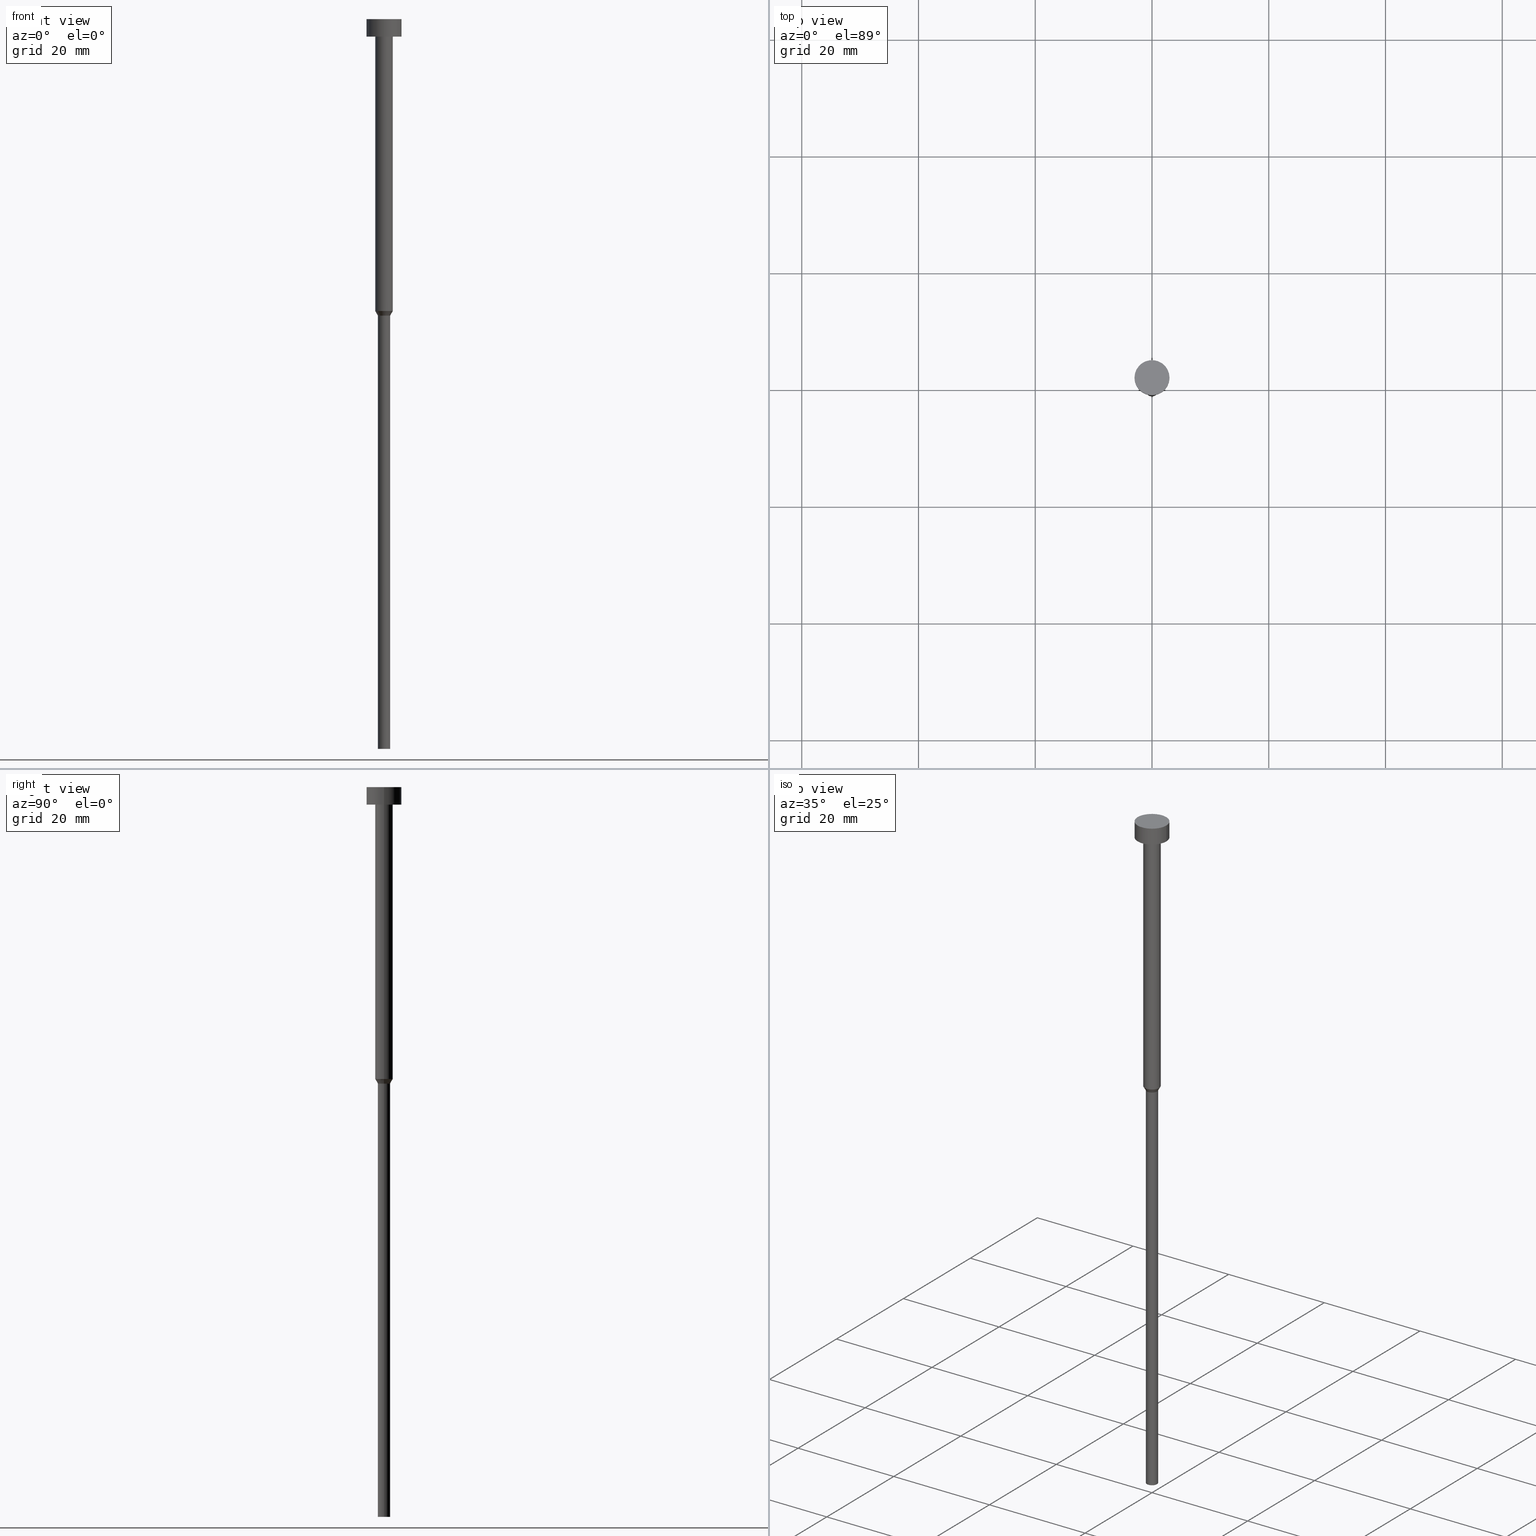
[diagram: canonical four-view strip — front | top / right | iso, engineering-drawing reading convention]
A machine part, canonical four-view strip (front | top / right | iso — engineering-drawing reading convention). The complete STEP part file that produces these views, byte-faithful:
ISO-10303-21;
HEADER;
FILE_DESCRIPTION (( 'STEP AP203' ),
    '1' );
FILE_NAME ('c009.STEP',
    '2023-02-13T10:03:35',
    ( '' ),
    ( '' ),
    'SwSTEP 2.0',
    'SolidWorks 2019',
    '' );
FILE_SCHEMA (( 'CONFIG_CONTROL_DESIGN' ));
ENDSEC;

DATA;
#1 = VECTOR ( 'NONE', #127, 1000.000000000000000 ) ;
#2 = DIRECTION ( 'NONE',  ( -0.000000000000000000, -0.000000000000000000, 1.000000000000000000 ) ) ;
#3 = ORIENTED_EDGE ( 'NONE', *, *, #298, .F. ) ;
#4 = LOCAL_TIME ( 11, 3, 35.00000000000000000, #239 ) ;
#5 = DIRECTION ( 'NONE',  ( -0.000000000000000000, -0.000000000000000000, 1.000000000000000000 ) ) ;
#6 = EDGE_CURVE ( 'NONE', #198, #338, #262, .T. ) ;
#7 = EDGE_LOOP ( 'NONE', ( #148, #206 ) ) ;
#8 = FACE_OUTER_BOUND ( 'NONE', #284, .T. ) ;
#9 = EDGE_LOOP ( 'NONE', ( #312, #151 ) ) ;
#10 = CYLINDRICAL_SURFACE ( 'NONE', #81, 3.000000000000000000 ) ;
#11 = VERTEX_POINT ( 'NONE', #27 ) ;
#12 = AXIS2_PLACEMENT_3D ( 'NONE', #67, #171, #224 ) ;
#13 = COORDINATED_UNIVERSAL_TIME_OFFSET ( 1, 0, .AHEAD. ) ;
#14 = ORIENTED_EDGE ( 'NONE', *, *, #314, .F. ) ;
#15 = LINE ( 'NONE', #126, #84 ) ;
#16 = MANIFOLD_SOLID_BREP ( 'Rotovat1', #290 ) ;
#17 = PERSON_AND_ORGANIZATION_ROLE ( 'design_owner' ) ;
#18 = PERSON_AND_ORGANIZATION ( #73, #350 ) ;
#19 = CC_DESIGN_APPROVAL ( #47, ( #160 ) ) ;
#20 = EDGE_CURVE ( 'NONE', #338, #198, #216, .T. ) ;
#21 = CARTESIAN_POINT ( 'NONE',  ( 0.000000000000000000, 0.000000000000000000, -125.0000000000000000 ) ) ;
#22 = DATE_TIME_ROLE ( 'creation_date' ) ;
#23 = APPROVAL_PERSON_ORGANIZATION ( #263, #66, #95 ) ;
#24 = APPROVAL_STATUS ( 'not_yet_approved' ) ;
#25 = DIRECTION ( 'NONE',  ( -0.000000000000000000, -0.000000000000000000, 1.000000000000000000 ) ) ;
#26 = ORIENTED_EDGE ( 'NONE', *, *, #201, .T. ) ;
#27 = CARTESIAN_POINT ( 'NONE',  ( 1.500000000000000000, 0.000000000000000000, -3.000000000000000888 ) ) ;
#28 = AXIS2_PLACEMENT_3D ( 'NONE', #322, #266, #130 ) ;
#29 = UNCERTAINTY_MEASURE_WITH_UNIT (LENGTH_MEASURE( 1.000000000000000082E-05 ), #342, 'distance_accuracy_value', 'NONE');
#30 = DATE_TIME_ROLE ( 'classification_date' ) ;
#31 = ADVANCED_FACE ( 'NONE', ( #182 ), #293, .T. ) ;
#32 = DIRECTION ( 'NONE',  ( -0.000000000000000000, -0.000000000000000000, 1.000000000000000000 ) ) ;
#33 = FACE_OUTER_BOUND ( 'NONE', #85, .T. ) ;
#34 = ORIENTED_EDGE ( 'NONE', *, *, #138, .F. ) ;
#35 = AXIS2_PLACEMENT_3D ( 'NONE', #135, #105, #156 ) ;
#36 = DIRECTION ( 'NONE',  ( 1.000000000000000000, 0.000000000000000000, 0.000000000000000000 ) ) ;
#37 = ORIENTED_EDGE ( 'NONE', *, *, #20, .F. ) ;
#38 = CIRCLE ( 'NONE', #234, 3.000000000000000000 ) ;
#39 = DIRECTION ( 'NONE',  ( 1.000000000000000000, 0.000000000000000000, 0.000000000000000000 ) ) ;
#40 = DIRECTION ( 'NONE',  ( -0.000000000000000000, -0.000000000000000000, 1.000000000000000000 ) ) ;
#41 = PERSON_AND_ORGANIZATION ( #73, #350 ) ;
#42 = ORIENTED_EDGE ( 'NONE', *, *, #120, .F. ) ;
#43 = PERSON_AND_ORGANIZATION_ROLE ( 'creator' ) ;
#44 = EDGE_CURVE ( 'NONE', #11, #243, #255, .T. ) ;
#45 = ORIENTED_EDGE ( 'NONE', *, *, #170, .T. ) ;
#46 = CALENDAR_DATE ( 2023, 13, 2 ) ;
#47 = APPROVAL ( #24, 'NEUR�EN�' ) ;
#48 = EDGE_CURVE ( 'NONE', #299, #352, #154, .T. ) ;
#49 = DIRECTION ( 'NONE',  ( -0.000000000000000000, -0.000000000000000000, 1.000000000000000000 ) ) ;
#50 = EDGE_CURVE ( 'NONE', #198, #243, #102, .T. ) ;
#51 = EDGE_CURVE ( 'NONE', #352, #338, #53, .T. ) ;
#52 = CARTESIAN_POINT ( 'NONE',  ( -3.000000000000000000, 3.673940397442059868E-16, -3.673940397442059868E-16 ) ) ;
#53 = LINE ( 'NONE', #347, #277 ) ;
#54 = LOCAL_TIME ( 11, 3, 35.00000000000000000, #107 ) ;
#55 = EDGE_CURVE ( 'NONE', #338, #11, #109, .T. ) ;
#56 = CYLINDRICAL_SURFACE ( 'NONE', #114, 1.050000000000000044 ) ;
#57 = ORIENTED_EDGE ( 'NONE', *, *, #353, .T. ) ;
#58 = EDGE_LOOP ( 'NONE', ( #96, #253 ) ) ;
#59 = ORIENTED_EDGE ( 'NONE', *, *, #335, .T. ) ;
#60 = ADVANCED_FACE ( 'NONE', ( #208 ), #161, .T. ) ;
#61 = CARTESIAN_POINT ( 'NONE',  ( 1.500000000000000000, 0.000000000000000000, -50.00000000000000000 ) ) ;
#62 = ORIENTED_EDGE ( 'NONE', *, *, #197, .F. ) ;
#63 = PLANE ( 'NONE',  #178 ) ;
#64 = CARTESIAN_POINT ( 'NONE',  ( 0.000000000000000000, 0.000000000000000000, -125.0000000000000000 ) ) ;
#65 = EDGE_LOOP ( 'NONE', ( #341, #300 ) ) ;
#66 = APPROVAL ( #131, 'NEUR�EN�' ) ;
#67 = CARTESIAN_POINT ( 'NONE',  ( 0.000000000000000000, 0.000000000000000000, -3.000000000000000888 ) ) ;
#68 = CARTESIAN_POINT ( 'NONE',  ( -1.500000000000000000, 1.836970198721029934E-16, -50.00000000000000000 ) ) ;
#69 = EDGE_LOOP ( 'NONE', ( #62, #91, #220, #97 ) ) ;
#70 = DIRECTION ( 'NONE',  ( -0.000000000000000000, -0.000000000000000000, 1.000000000000000000 ) ) ;
#71 = ORIENTED_EDGE ( 'NONE', *, *, #50, .F. ) ;
#72 = APPLICATION_PROTOCOL_DEFINITION ( 'international standard', 'config_control_design', 1994, #212 ) ;
#73 = PERSON ( 'NEUR�EN�', 'NEUR�EN�', 'NEUR�EN�', ('NEUR�EN�'), ('NEUR�EN�'), ('NEUR�EN�') ) ;
#74 = CIRCLE ( 'NONE', #313, 1.050000000000000044 ) ;
#75 = CC_DESIGN_PERSON_AND_ORGANIZATION_ASSIGNMENT ( #344, #99, ( #316 ) ) ;
#76 = CC_DESIGN_PERSON_AND_ORGANIZATION_ASSIGNMENT ( #41, #149, ( #316 ) ) ;
#77 = APPROVAL_ROLE ( '' ) ;
#78 = EDGE_LOOP ( 'NONE', ( #331, #225, #203, #179 ) ) ;
#79 = CARTESIAN_POINT ( 'NONE',  ( -1.500000000000000000, 1.836970198721029934E-16, 0.000000000000000000 ) ) ;
#80 = CYLINDRICAL_SURFACE ( 'NONE', #104, 1.500000000000000000 ) ;
#81 = AXIS2_PLACEMENT_3D ( 'NONE', #87, #2, #305 ) ;
#82 = CARTESIAN_POINT ( 'NONE',  ( 0.000000000000000000, 0.000000000000000000, -50.00000000000000000 ) ) ;
#83 = DIRECTION ( 'NONE',  ( -0.000000000000000000, -0.000000000000000000, 1.000000000000000000 ) ) ;
#84 = VECTOR ( 'NONE', #233, 1000.000000000000000 ) ;
#85 = EDGE_LOOP ( 'NONE', ( #59, #57, #14, #270 ) ) ;
#86 = DIRECTION ( 'NONE',  ( 1.000000000000000000, 0.000000000000000000, 0.000000000000000000 ) ) ;
#87 = CARTESIAN_POINT ( 'NONE',  ( 0.000000000000000000, 0.000000000000000000, 0.000000000000000000 ) ) ;
#88 = CIRCLE ( 'NONE', #326, 3.000000000000000000 ) ;
#89 = ORIENTED_EDGE ( 'NONE', *, *, #51, .F. ) ;
#90 = FACE_OUTER_BOUND ( 'NONE', #258, .T. ) ;
#91 = ORIENTED_EDGE ( 'NONE', *, *, #48, .T. ) ;
#92 = CARTESIAN_POINT ( 'NONE',  ( -3.000000000000000000, 3.673940397442059868E-16, -3.000000000000000888 ) ) ;
#93 = DIRECTION ( 'NONE',  ( -0.000000000000000000, -0.000000000000000000, 1.000000000000000000 ) ) ;
#94 = CC_DESIGN_PERSON_AND_ORGANIZATION_ASSIGNMENT ( #134, #268, ( #160 ) ) ;
#95 = APPROVAL_ROLE ( '' ) ;
#96 = ORIENTED_EDGE ( 'NONE', *, *, #335, .F. ) ;
#97 = ORIENTED_EDGE ( 'NONE', *, *, #6, .F. ) ;
#98 = APPROVAL_PERSON_ORGANIZATION ( #351, #47, #103 ) ;
#99 = PERSON_AND_ORGANIZATION_ROLE ( 'creator' ) ;
#100 = ORIENTED_EDGE ( 'NONE', *, *, #184, .F. ) ;
#101 = PERSON_AND_ORGANIZATION ( #73, #350 ) ;
#102 = LINE ( 'NONE', #79, #159 ) ;
#103 = APPROVAL_ROLE ( '' ) ;
#104 = AXIS2_PLACEMENT_3D ( 'NONE', #129, #70, #204 ) ;
#105 = DIRECTION ( 'NONE',  ( -0.000000000000000000, -0.000000000000000000, 1.000000000000000000 ) ) ;
#106 = AXIS2_PLACEMENT_3D ( 'NONE', #297, #238, #165 ) ;
#107 = COORDINATED_UNIVERSAL_TIME_OFFSET ( 1, 0, .AHEAD. ) ;
#108 = CC_DESIGN_PERSON_AND_ORGANIZATION_ASSIGNMENT ( #18, #17, ( #177 ) ) ;
#109 = LINE ( 'NONE', #136, #1 ) ;
#110 = DIRECTION ( 'NONE',  ( 1.000000000000000000, 0.000000000000000000, 0.000000000000000000 ) ) ;
#111 = LINE ( 'NONE', #272, #128 ) ;
#112 = CYLINDRICAL_SURFACE ( 'NONE', #271, 3.000000000000000000 ) ;
#113 = APPLICATION_CONTEXT ( 'configuration controlled 3d designs of mechanical parts and assemblies' ) ;
#114 = AXIS2_PLACEMENT_3D ( 'NONE', #162, #245, #210 ) ;
#115 = CIRCLE ( 'NONE', #12, 3.000000000000000000 ) ;
#116 = FACE_OUTER_BOUND ( 'NONE', #337, .T. ) ;
#117 = CYLINDRICAL_SURFACE ( 'NONE', #188, 1.500000000000000000 ) ;
#118 = VERTEX_POINT ( 'NONE', #52 ) ;
#119 = DIRECTION ( 'NONE',  ( 1.000000000000000000, 0.000000000000000000, 0.000000000000000000 ) ) ;
#120 = EDGE_CURVE ( 'NONE', #243, #11, #186, .T. ) ;
#121 = AXIS2_PLACEMENT_3D ( 'NONE', #140, #249, #145 ) ;
#122 = DATE_AND_TIME ( #320, #202 ) ;
#123 = ORIENTED_EDGE ( 'NONE', *, *, #184, .T. ) ;
#124 = DIRECTION ( 'NONE',  ( 0.000000000000000000, 0.000000000000000000, -1.000000000000000000 ) ) ;
#125 = ORIENTED_EDGE ( 'NONE', *, *, #197, .T. ) ;
#126 = CARTESIAN_POINT ( 'NONE',  ( -3.000000000000000000, 3.673940397442059868E-16, 0.000000000000000000 ) ) ;
#127 = DIRECTION ( 'NONE',  ( -0.000000000000000000, -0.000000000000000000, 1.000000000000000000 ) ) ;
#128 = VECTOR ( 'NONE', #310, 1000.000000000000000 ) ;
#129 = CARTESIAN_POINT ( 'NONE',  ( 0.000000000000000000, 0.000000000000000000, 0.000000000000000000 ) ) ;
#130 = DIRECTION ( 'NONE',  ( 1.000000000000000000, 0.000000000000000000, 0.000000000000000000 ) ) ;
#131 = APPROVAL_STATUS ( 'not_yet_approved' ) ;
#132 = CIRCLE ( 'NONE', #346, 1.050000000000000044 ) ;
#133 = DIRECTION ( 'NONE',  ( 0.000000000000000000, 0.000000000000000000, -1.000000000000000000 ) ) ;
#134 = PERSON_AND_ORGANIZATION ( #73, #350 ) ;
#135 = CARTESIAN_POINT ( 'NONE',  ( 0.000000000000000000, 0.000000000000000000, -3.000000000000000888 ) ) ;
#136 = CARTESIAN_POINT ( 'NONE',  ( 1.500000000000000000, 0.000000000000000000, 0.000000000000000000 ) ) ;
#137 = DIRECTION ( 'NONE',  ( -0.000000000000000000, -0.000000000000000000, 1.000000000000000000 ) ) ;
#138 = EDGE_CURVE ( 'NONE', #278, #299, #325, .T. ) ;
#139 = ORIENTED_EDGE ( 'NONE', *, *, #240, .T. ) ;
#140 = CARTESIAN_POINT ( 'NONE',  ( 0.000000000000000000, 0.000000000000000000, -1.836970198721029934E-16 ) ) ;
#141 = AXIS2_PLACEMENT_3D ( 'NONE', #82, #49, #288 ) ;
#142 = ADVANCED_FACE ( 'NONE', ( #190 ), #56, .T. ) ;
#143 = CARTESIAN_POINT ( 'NONE',  ( 0.000000000000000000, 0.000000000000000000, 0.000000000000000000 ) ) ;
#144 = AXIS2_PLACEMENT_3D ( 'NONE', #334, #137, #248 ) ;
#145 = DIRECTION ( 'NONE',  ( 1.000000000000000000, 0.000000000000000000, 0.000000000000000000 ) ) ;
#146 = VERTEX_POINT ( 'NONE', #191 ) ;
#147 = DIRECTION ( 'NONE',  ( 1.000000000000000000, 0.000000000000000000, 0.000000000000000000 ) ) ;
#148 = ORIENTED_EDGE ( 'NONE', *, *, #44, .T. ) ;
#149 = PERSON_AND_ORGANIZATION_ROLE ( 'design_supplier' ) ;
#150 = DIRECTION ( 'NONE',  ( -1.000000000000000000, 0.000000000000000000, -0.000000000000000000 ) ) ;
#151 = ORIENTED_EDGE ( 'NONE', *, *, #211, .F. ) ;
#152 = DATE_AND_TIME ( #46, #218 ) ;
#153 = CARTESIAN_POINT ( 'NONE',  ( 0.000000000000000000, 0.000000000000000000, -50.77942286340599765 ) ) ;
#154 = CIRCLE ( 'NONE', #349, 1.050000000000000044 ) ;
#155 = COORDINATED_UNIVERSAL_TIME_OFFSET ( 1, 0, .AHEAD. ) ;
#156 = DIRECTION ( 'NONE',  ( 1.000000000000000000, 0.000000000000000000, 0.000000000000000000 ) ) ;
#157 = PRODUCT_DEFINITION_SHAPE ( 'NONE', 'NONE',  #229 ) ;
#158 = DATE_AND_TIME ( #164, #4 ) ;
#159 = VECTOR ( 'NONE', #25, 1000.000000000000000 ) ;
#160 = SECURITY_CLASSIFICATION ( '', '', #256 ) ;
#161 = PLANE ( 'NONE',  #343 ) ;
#162 = CARTESIAN_POINT ( 'NONE',  ( 0.000000000000000000, 0.000000000000000000, 0.000000000000000000 ) ) ;
#163 = EDGE_LOOP ( 'NONE', ( #205, #139, #26, #217 ) ) ;
#164 = CALENDAR_DATE ( 2023, 13, 2 ) ;
#165 = DIRECTION ( 'NONE',  ( 1.000000000000000000, 0.000000000000000000, 0.000000000000000000 ) ) ;
#166 = CIRCLE ( 'NONE', #257, 1.050000000000000044 ) ;
#167 = FACE_OUTER_BOUND ( 'NONE', #65, .T. ) ;
#168 = CARTESIAN_POINT ( 'NONE',  ( -1.050000000000000044, 1.285879139104720978E-16, -50.77942286340599765 ) ) ;
#169 = CARTESIAN_POINT ( 'NONE',  ( 3.000000000000000000, 0.000000000000000000, 0.000000000000000000 ) ) ;
#170 = EDGE_CURVE ( 'NONE', #230, #278, #74, .T. ) ;
#171 = DIRECTION ( 'NONE',  ( -0.000000000000000000, -0.000000000000000000, 1.000000000000000000 ) ) ;
#172 = LOCAL_TIME ( 11, 3, 35.00000000000000000, #285 ) ;
#173 = CARTESIAN_POINT ( 'NONE',  ( -1.050000000000000044, 1.285879139104720978E-16, -125.0000000000000000 ) ) ;
#174 = EDGE_LOOP ( 'NONE', ( #34, #317, #273, #281 ) ) ;
#175 = DIRECTION ( 'NONE',  ( 0.000000000000000000, 0.000000000000000000, 1.000000000000000000 ) ) ;
#176 = APPROVAL_STATUS ( 'not_yet_approved' ) ;
#177 = PRODUCT ( 'c009', 'c009', '', ( #339 ) ) ;
#178 = AXIS2_PLACEMENT_3D ( 'NONE', #292, #124, #150 ) ;
#179 = ORIENTED_EDGE ( 'NONE', *, *, #55, .F. ) ;
#180 = DIRECTION ( 'NONE',  ( 1.000000000000000000, 0.000000000000000000, 0.000000000000000000 ) ) ;
#181 =( NAMED_UNIT ( * ) SI_UNIT ( $, .STERADIAN. ) SOLID_ANGLE_UNIT ( ) );
#182 = FACE_OUTER_BOUND ( 'NONE', #69, .T. ) ;
#183 =( NAMED_UNIT ( * ) PLANE_ANGLE_UNIT ( ) SI_UNIT ( $, .RADIAN. ) );
#184 = EDGE_CURVE ( 'NONE', #352, #299, #132, .T. ) ;
#185 = PRODUCT_RELATED_PRODUCT_CATEGORY ( 'detail', '', ( #177 ) ) ;
#186 = CIRCLE ( 'NONE', #35, 1.500000000000000000 ) ;
#187 = DIRECTION ( 'NONE',  ( -0.000000000000000000, -0.000000000000000000, 1.000000000000000000 ) ) ;
#188 = AXIS2_PLACEMENT_3D ( 'NONE', #196, #254, #86 ) ;
#189 = CALENDAR_DATE ( 2023, 13, 2 ) ;
#190 = FACE_OUTER_BOUND ( 'NONE', #174, .T. ) ;
#191 = CARTESIAN_POINT ( 'NONE',  ( 3.000000000000000000, 0.000000000000000000, -3.000000000000000888 ) ) ;
#192 = DIRECTION ( 'NONE',  ( -0.000000000000000000, -0.000000000000000000, 1.000000000000000000 ) ) ;
#193 = CIRCLE ( 'NONE', #227, 3.000000000000000000 ) ;
#194 = CARTESIAN_POINT ( 'NONE',  ( 1.050000000000000044, 0.000000000000000000, -125.0000000000000000 ) ) ;
#195 = DIRECTION ( 'NONE',  ( 1.000000000000000000, 0.000000000000000000, 0.000000000000000000 ) ) ;
#196 = CARTESIAN_POINT ( 'NONE',  ( 0.000000000000000000, 0.000000000000000000, 0.000000000000000000 ) ) ;
#197 = EDGE_CURVE ( 'NONE', #299, #198, #111, .T. ) ;
#198 = VERTEX_POINT ( 'NONE', #68 ) ;
#199 = DIRECTION ( 'NONE',  ( -0.000000000000000000, -0.000000000000000000, 1.000000000000000000 ) ) ;
#200 = ORIENTED_EDGE ( 'NONE', *, *, #138, .T. ) ;
#201 = EDGE_CURVE ( 'NONE', #146, #327, #275, .T. ) ;
#202 = LOCAL_TIME ( 11, 3, 35.00000000000000000, #155 ) ;
#203 = ORIENTED_EDGE ( 'NONE', *, *, #44, .F. ) ;
#204 = DIRECTION ( 'NONE',  ( 1.000000000000000000, 0.000000000000000000, 0.000000000000000000 ) ) ;
#205 = ORIENTED_EDGE ( 'NONE', *, *, #353, .F. ) ;
#206 = ORIENTED_EDGE ( 'NONE', *, *, #120, .T. ) ;
#207 = APPROVAL_PERSON_ORGANIZATION ( #101, #246, #77 ) ;
#208 = FACE_OUTER_BOUND ( 'NONE', #9, .T. ) ;
#209 = CC_DESIGN_SECURITY_CLASSIFICATION ( #160, ( #316 ) ) ;
#210 = DIRECTION ( 'NONE',  ( 1.000000000000000000, 0.000000000000000000, 0.000000000000000000 ) ) ;
#211 = EDGE_CURVE ( 'NONE', #278, #230, #166, .T. ) ;
#212 = APPLICATION_CONTEXT ( 'configuration controlled 3d designs of mechanical parts and assemblies' ) ;
#213 = CARTESIAN_POINT ( 'NONE',  ( 0.000000000000000000, 0.000000000000000000, -50.00000000000000000 ) ) ;
#214 = ADVANCED_FACE ( 'NONE', ( #276 ), #10, .T. ) ;
#215 = FACE_BOUND ( 'NONE', #7, .T. ) ;
#216 = CIRCLE ( 'NONE', #329, 1.500000000000000000 ) ;
#217 = ORIENTED_EDGE ( 'NONE', *, *, #304, .F. ) ;
#218 = LOCAL_TIME ( 11, 3, 35.00000000000000000, #13 ) ;
#219 = CARTESIAN_POINT ( 'NONE',  ( 0.000000000000000000, 0.000000000000000000, -3.000000000000000888 ) ) ;
#220 = ORIENTED_EDGE ( 'NONE', *, *, #51, .T. ) ;
#221 = DESIGN_CONTEXT ( 'detailed design', #212, 'design' ) ;
#222 = DIRECTION ( 'NONE',  ( -0.000000000000000000, -0.000000000000000000, 1.000000000000000000 ) ) ;
#223 = CC_DESIGN_DATE_AND_TIME_ASSIGNMENT ( #122, #22, ( #229 ) ) ;
#224 = DIRECTION ( 'NONE',  ( 1.000000000000000000, 0.000000000000000000, 0.000000000000000000 ) ) ;
#225 = ORIENTED_EDGE ( 'NONE', *, *, #50, .T. ) ;
#226 = CARTESIAN_POINT ( 'NONE',  ( 0.000000000000000000, 0.000000000000000000, -3.673940397442059868E-16 ) ) ;
#227 = AXIS2_PLACEMENT_3D ( 'NONE', #333, #5, #303 ) ;
#228 = FACE_OUTER_BOUND ( 'NONE', #78, .T. ) ;
#229 = PRODUCT_DEFINITION ( 'NEZN�M�', '', #316, #221 ) ;
#230 = VERTEX_POINT ( 'NONE', #194 ) ;
#231 = CARTESIAN_POINT ( 'NONE',  ( 1.050000000000000044, 0.000000000000000000, -50.77942286340599765 ) ) ;
#232 = ADVANCED_FACE ( 'NONE', ( #33 ), #112, .T. ) ;
#233 = DIRECTION ( 'NONE',  ( -0.000000000000000000, -0.000000000000000000, 1.000000000000000000 ) ) ;
#234 = AXIS2_PLACEMENT_3D ( 'NONE', #226, #93, #195 ) ;
#235 = DIRECTION ( 'NONE',  ( -0.000000000000000000, -0.000000000000000000, 1.000000000000000000 ) ) ;
#236 = ADVANCED_FACE ( 'NONE', ( #116 ), #252, .T. ) ;
#237 = CARTESIAN_POINT ( 'NONE',  ( 0.000000000000000000, 0.000000000000000000, 0.000000000000000000 ) ) ;
#238 = DIRECTION ( 'NONE',  ( -0.000000000000000000, -0.000000000000000000, 1.000000000000000000 ) ) ;
#239 = COORDINATED_UNIVERSAL_TIME_OFFSET ( 1, 0, .AHEAD. ) ;
#240 = EDGE_CURVE ( 'NONE', #311, #146, #88, .T. ) ;
#241 = VECTOR ( 'NONE', #279, 1000.000000000000000 ) ;
#242 = DATE_AND_TIME ( #189, #54 ) ;
#243 = VERTEX_POINT ( 'NONE', #336 ) ;
#244 = APPROVAL_DATE_TIME ( #242, #47 ) ;
#245 = DIRECTION ( 'NONE',  ( -0.000000000000000000, -0.000000000000000000, 1.000000000000000000 ) ) ;
#246 = APPROVAL ( #176, 'NEUR�EN�' ) ;
#247 = CARTESIAN_POINT ( 'NONE',  ( 0.000000000000000000, 0.000000000000000000, -125.0000000000000000 ) ) ;
#248 = DIRECTION ( 'NONE',  ( 1.000000000000000000, 0.000000000000000000, 0.000000000000000000 ) ) ;
#249 = DIRECTION ( 'NONE',  ( 0.000000000000000000, -0.000000000000000000, 1.000000000000000000 ) ) ;
#250 = CC_DESIGN_APPROVAL ( #66, ( #316 ) ) ;
#251 = PLANE ( 'NONE',  #121 ) ;
#252 = CYLINDRICAL_SURFACE ( 'NONE', #296, 1.050000000000000044 ) ;
#253 = ORIENTED_EDGE ( 'NONE', *, *, #240, .F. ) ;
#254 = DIRECTION ( 'NONE',  ( -0.000000000000000000, -0.000000000000000000, 1.000000000000000000 ) ) ;
#255 = CIRCLE ( 'NONE', #106, 1.500000000000000000 ) ;
#256 = SECURITY_CLASSIFICATION_LEVEL ( 'unclassified' ) ;
#257 = AXIS2_PLACEMENT_3D ( 'NONE', #64, #40, #147 ) ;
#258 = EDGE_LOOP ( 'NONE', ( #71, #309, #307, #42 ) ) ;
#259 = CALENDAR_DATE ( 2023, 13, 2 ) ;
#260 = CC_DESIGN_DATE_AND_TIME_ASSIGNMENT ( #158, #30, ( #160 ) ) ;
#261 = CARTESIAN_POINT ( 'NONE',  ( 0.000000000000000000, 0.000000000000000000, -50.77942286340599765 ) ) ;
#262 = CIRCLE ( 'NONE', #28, 1.500000000000000000 ) ;
#263 = PERSON_AND_ORGANIZATION ( #73, #350 ) ;
#264 =( GEOMETRIC_REPRESENTATION_CONTEXT ( 3 ) GLOBAL_UNCERTAINTY_ASSIGNED_CONTEXT ( ( #29 ) ) GLOBAL_UNIT_ASSIGNED_CONTEXT ( ( #342, #183, #181 ) ) REPRESENTATION_CONTEXT ( 'NONE', 'WORKASPACE' ) );
#265 = DATE_AND_TIME ( #259, #172 ) ;
#266 = DIRECTION ( 'NONE',  ( -0.000000000000000000, -0.000000000000000000, 1.000000000000000000 ) ) ;
#267 = DIRECTION ( 'NONE',  ( -0.000000000000000000, -0.000000000000000000, 1.000000000000000000 ) ) ;
#268 = PERSON_AND_ORGANIZATION_ROLE ( 'classification_officer' ) ;
#269 = DIRECTION ( 'NONE',  ( -0.000000000000000000, -0.000000000000000000, 1.000000000000000000 ) ) ;
#270 = ORIENTED_EDGE ( 'NONE', *, *, #201, .F. ) ;
#271 = AXIS2_PLACEMENT_3D ( 'NONE', #301, #192, #36 ) ;
#272 = CARTESIAN_POINT ( 'NONE',  ( -1.500000000000000000, 1.836970198721029934E-16, -50.00000000000000000 ) ) ;
#273 = ORIENTED_EDGE ( 'NONE', *, *, #298, .T. ) ;
#274 = ADVANCED_BREP_SHAPE_REPRESENTATION ( 'c009', ( #16, #302 ), #264 ) ;
#275 = LINE ( 'NONE', #169, #241 ) ;
#276 = FACE_OUTER_BOUND ( 'NONE', #163, .T. ) ;
#277 = VECTOR ( 'NONE', #295, 1000.000000000000000 ) ;
#278 = VERTEX_POINT ( 'NONE', #173 ) ;
#279 = DIRECTION ( 'NONE',  ( -0.000000000000000000, -0.000000000000000000, 1.000000000000000000 ) ) ;
#280 = LINE ( 'NONE', #354, #286 ) ;
#281 = ORIENTED_EDGE ( 'NONE', *, *, #48, .F. ) ;
#282 = APPROVAL_DATE_TIME ( #152, #66 ) ;
#283 = ADVANCED_FACE ( 'NONE', ( #167 ), #251, .T. ) ;
#284 = EDGE_LOOP ( 'NONE', ( #123, #125, #37, #89 ) ) ;
#285 = COORDINATED_UNIVERSAL_TIME_OFFSET ( 1, 0, .AHEAD. ) ;
#286 = VECTOR ( 'NONE', #199, 1000.000000000000000 ) ;
#287 = PERSON_AND_ORGANIZATION ( #73, #350 ) ;
#288 = DIRECTION ( 'NONE',  ( 1.000000000000000000, 0.000000000000000000, 0.000000000000000000 ) ) ;
#289 = APPROVAL_DATE_TIME ( #265, #246 ) ;
#290 = CLOSED_SHELL ( 'NONE', ( #232, #355, #306, #236, #60, #142, #31, #324, #345, #214, #283 ) ) ;
#291 = DIRECTION ( 'NONE',  ( 1.000000000000000000, 0.000000000000000000, 0.000000000000000000 ) ) ;
#292 = CARTESIAN_POINT ( 'NONE',  ( 0.000000000000000000, -3.000000000000000000, -3.000000000000000888 ) ) ;
#293 = CONICAL_SURFACE ( 'NONE', #141, 1.500000000000000000, 0.5235987755982990377 ) ;
#294 = SHAPE_DEFINITION_REPRESENTATION ( #157, #274 ) ;
#295 = DIRECTION ( 'NONE',  ( 0.5000000000000001110, 0.000000000000000000, 0.8660254037844385966 ) ) ;
#296 = AXIS2_PLACEMENT_3D ( 'NONE', #143, #222, #119 ) ;
#297 = CARTESIAN_POINT ( 'NONE',  ( 0.000000000000000000, 0.000000000000000000, -3.000000000000000888 ) ) ;
#298 = EDGE_CURVE ( 'NONE', #230, #352, #280, .T. ) ;
#299 = VERTEX_POINT ( 'NONE', #168 ) ;
#300 = ORIENTED_EDGE ( 'NONE', *, *, #304, .T. ) ;
#301 = CARTESIAN_POINT ( 'NONE',  ( 0.000000000000000000, 0.000000000000000000, 0.000000000000000000 ) ) ;
#302 = AXIS2_PLACEMENT_3D ( 'NONE', #237, #175, #318 ) ;
#303 = DIRECTION ( 'NONE',  ( 1.000000000000000000, 0.000000000000000000, 0.000000000000000000 ) ) ;
#304 = EDGE_CURVE ( 'NONE', #118, #327, #193, .T. ) ;
#305 = DIRECTION ( 'NONE',  ( 1.000000000000000000, 0.000000000000000000, 0.000000000000000000 ) ) ;
#306 = ADVANCED_FACE ( 'NONE', ( #8 ), #323, .T. ) ;
#307 = ORIENTED_EDGE ( 'NONE', *, *, #55, .T. ) ;
#308 = CARTESIAN_POINT ( 'NONE',  ( 3.000000000000000000, 0.000000000000000000, -3.673940397442059868E-16 ) ) ;
#309 = ORIENTED_EDGE ( 'NONE', *, *, #6, .T. ) ;
#310 = DIRECTION ( 'NONE',  ( -0.5000000000000001110, 6.123233995736767268E-17, 0.8660254037844385966 ) ) ;
#311 = VERTEX_POINT ( 'NONE', #92 ) ;
#312 = ORIENTED_EDGE ( 'NONE', *, *, #170, .F. ) ;
#313 = AXIS2_PLACEMENT_3D ( 'NONE', #21, #269, #180 ) ;
#314 = EDGE_CURVE ( 'NONE', #327, #118, #38, .T. ) ;
#315 = APPLICATION_PROTOCOL_DEFINITION ( 'international standard', 'config_control_design', 1994, #113 ) ;
#316 = PRODUCT_DEFINITION_FORMATION_WITH_SPECIFIED_SOURCE ( 'LIBOVOLN�', '', #177, .NOT_KNOWN. ) ;
#317 = ORIENTED_EDGE ( 'NONE', *, *, #211, .T. ) ;
#318 = DIRECTION ( 'NONE',  ( 1.000000000000000000, 0.000000000000000000, 0.000000000000000000 ) ) ;
#319 = DIRECTION ( 'NONE',  ( 1.000000000000000000, 0.000000000000000000, 0.000000000000000000 ) ) ;
#320 = CALENDAR_DATE ( 2023, 13, 2 ) ;
#321 = VECTOR ( 'NONE', #83, 1000.000000000000000 ) ;
#322 = CARTESIAN_POINT ( 'NONE',  ( 0.000000000000000000, 0.000000000000000000, -50.00000000000000000 ) ) ;
#323 = CONICAL_SURFACE ( 'NONE', #144, 1.500000000000000000, 0.5235987755982990377 ) ;
#324 = ADVANCED_FACE ( 'NONE', ( #90 ), #117, .T. ) ;
#325 = LINE ( 'NONE', #328, #321 ) ;
#326 = AXIS2_PLACEMENT_3D ( 'NONE', #219, #32, #39 ) ;
#327 = VERTEX_POINT ( 'NONE', #308 ) ;
#328 = CARTESIAN_POINT ( 'NONE',  ( -1.050000000000000044, 1.285879139104720978E-16, 0.000000000000000000 ) ) ;
#329 = AXIS2_PLACEMENT_3D ( 'NONE', #213, #267, #110 ) ;
#330 = FACE_OUTER_BOUND ( 'NONE', #58, .T. ) ;
#331 = ORIENTED_EDGE ( 'NONE', *, *, #20, .T. ) ;
#332 = CC_DESIGN_APPROVAL ( #246, ( #229 ) ) ;
#333 = CARTESIAN_POINT ( 'NONE',  ( 0.000000000000000000, 0.000000000000000000, -3.673940397442059868E-16 ) ) ;
#334 = CARTESIAN_POINT ( 'NONE',  ( 0.000000000000000000, 0.000000000000000000, -50.00000000000000000 ) ) ;
#335 = EDGE_CURVE ( 'NONE', #146, #311, #115, .T. ) ;
#336 = CARTESIAN_POINT ( 'NONE',  ( -1.500000000000000000, 1.836970198721029934E-16, -3.000000000000000888 ) ) ;
#337 = EDGE_LOOP ( 'NONE', ( #45, #200, #100, #3 ) ) ;
#338 = VERTEX_POINT ( 'NONE', #61 ) ;
#339 = MECHANICAL_CONTEXT ( 'NONE', #113, 'mechanical' ) ;
#340 = CC_DESIGN_PERSON_AND_ORGANIZATION_ASSIGNMENT ( #287, #43, ( #229 ) ) ;
#341 = ORIENTED_EDGE ( 'NONE', *, *, #314, .T. ) ;
#342 =( LENGTH_UNIT ( ) NAMED_UNIT ( * ) SI_UNIT ( .MILLI., .METRE. ) );
#343 = AXIS2_PLACEMENT_3D ( 'NONE', #247, #133, #348 ) ;
#344 = PERSON_AND_ORGANIZATION ( #73, #350 ) ;
#345 = ADVANCED_FACE ( 'NONE', ( #215, #330 ), #63, .T. ) ;
#346 = AXIS2_PLACEMENT_3D ( 'NONE', #261, #235, #319 ) ;
#347 = CARTESIAN_POINT ( 'NONE',  ( 1.500000000000000000, 0.000000000000000000, -50.00000000000000000 ) ) ;
#348 = DIRECTION ( 'NONE',  ( -1.000000000000000000, 0.000000000000000000, -0.000000000000000000 ) ) ;
#349 = AXIS2_PLACEMENT_3D ( 'NONE', #153, #187, #291 ) ;
#350 = ORGANIZATION ( 'NEUR�EN�', 'NEUR�EN�', '' ) ;
#351 = PERSON_AND_ORGANIZATION ( #73, #350 ) ;
#352 = VERTEX_POINT ( 'NONE', #231 ) ;
#353 = EDGE_CURVE ( 'NONE', #311, #118, #15, .T. ) ;
#354 = CARTESIAN_POINT ( 'NONE',  ( 1.050000000000000044, 0.000000000000000000, 0.000000000000000000 ) ) ;
#355 = ADVANCED_FACE ( 'NONE', ( #228 ), #80, .T. ) ;
ENDSEC;
END-ISO-10303-21;
